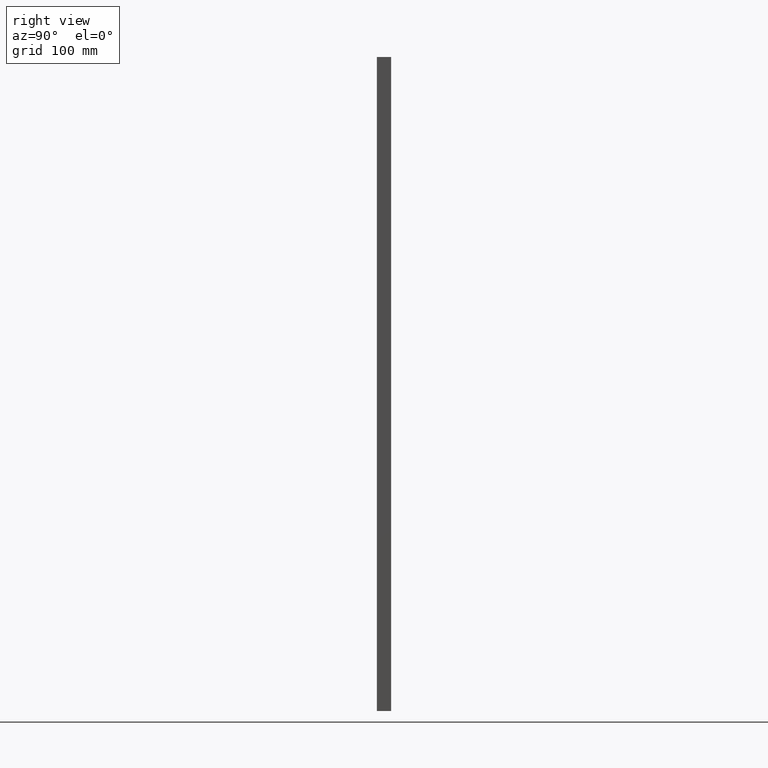
[diagram: clean part render]
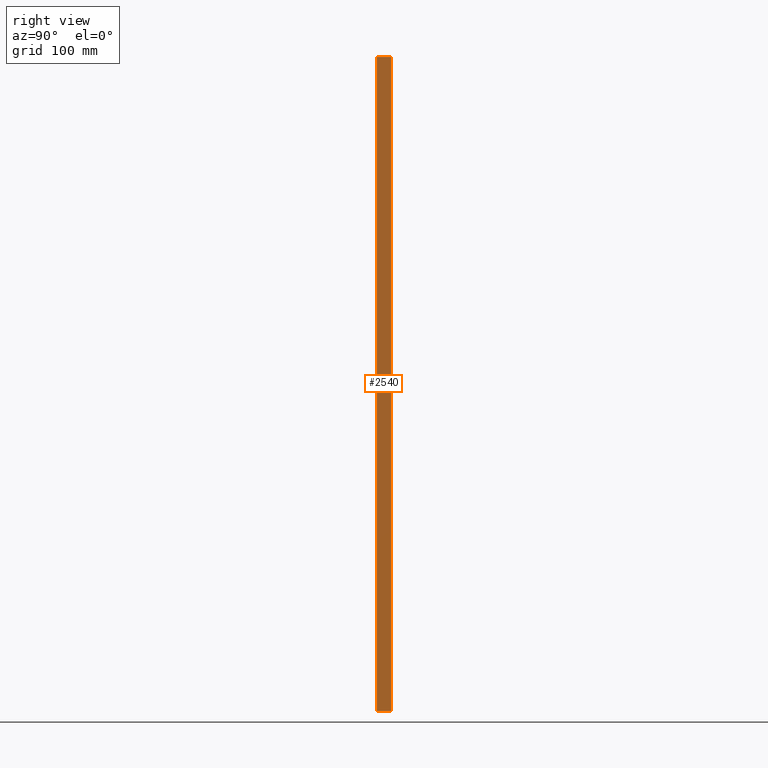
[diagram: same view with one face highlighted and labeled with its STEP entity id]
A machine part, right view. The second image highlights one B-rep face of the part: STEP entity #2540.
In plain terms, the highlighted planar face has unit normal (-1, 0, 0).
Its self-contained STEP definition (entity closure, byte-faithful):
#36 = VERTEX_POINT ( 'NONE', #3815 ) ;
#177 = EDGE_CURVE ( 'NONE', #3461, #8501, #8966, .T. ) ;
#430 = CARTESIAN_POINT ( 'NONE',  ( 150.0000000000000000, 0.000000000000000000, -299.9999999999999432 ) ) ;
#990 = ORIENTED_EDGE ( 'NONE', *, *, #3434, .F. ) ;
#1492 = ORIENTED_EDGE ( 'NONE', *, *, #1508, .F. ) ;
#1508 = EDGE_CURVE ( 'NONE', #5746, #3461, #2339, .T. ) ;
#1714 = ORIENTED_EDGE ( 'NONE', *, *, #177, .F. ) ;
#1986 = CARTESIAN_POINT ( 'NONE',  ( 150.0000000000000000, 13.00000000000000178, -299.9999999999999432 ) ) ;
#2047 = VECTOR ( 'NONE', #3245, 1000.000000000000000 ) ;
#2339 = LINE ( 'NONE', #5286, #9391 ) ;
#2484 = CARTESIAN_POINT ( 'NONE',  ( 150.0000000000000568, 13.00000000000000178, 0.000000000000000000 ) ) ;
#2540 = ADVANCED_FACE ( 'NONE', ( #9225 ), #8511, .F. ) ;
#2633 = LINE ( 'NONE', #3963, #8413 ) ;
#3245 = DIRECTION ( 'NONE',  ( -9.251858538542974046E-17, -0.000000000000000000, -1.000000000000000000 ) ) ;
#3434 = EDGE_CURVE ( 'NONE', #8501, #36, #2633, .T. ) ;
#3461 = VERTEX_POINT ( 'NONE', #6965 ) ;
#3815 = CARTESIAN_POINT ( 'NONE',  ( 150.0000000000000000, 0.000000000000000000, -299.9999999999999432 ) ) ;
#3963 = CARTESIAN_POINT ( 'NONE',  ( 150.0000000000000000, 13.00000000000000178, -299.9999999999999432 ) ) ;
#4024 = EDGE_CURVE ( 'NONE', #5746, #36, #7674, .T. ) ;
#4055 = ORIENTED_EDGE ( 'NONE', *, *, #4024, .T. ) ;
#4889 = DIRECTION ( 'NONE',  ( -1.000000000000000000, 0.000000000000000000, 9.251858538542974046E-17 ) ) ;
#5286 = CARTESIAN_POINT ( 'NONE',  ( 150.0000000000000568, 13.00000000000000178, 300.0000000000000568 ) ) ;
#5517 = DIRECTION ( 'NONE',  ( 0.000000000000000000, 1.000000000000000000, -0.000000000000000000 ) ) ;
#5567 = CARTESIAN_POINT ( 'NONE',  ( 150.0000000000000284, 13.00000000000000178, -299.9999999999999432 ) ) ;
#5622 = DIRECTION ( 'NONE',  ( -0.000000000000000000, -1.000000000000000000, 0.000000000000000000 ) ) ;
#5746 = VERTEX_POINT ( 'NONE', #8990 ) ;
#6373 = DIRECTION ( 'NONE',  ( -0.000000000000000000, 0.000000000000000000, -1.000000000000000000 ) ) ;
#6965 = CARTESIAN_POINT ( 'NONE',  ( 150.0000000000000568, 13.00000000000000178, 300.0000000000000568 ) ) ;
#7323 = DIRECTION ( 'NONE',  ( 9.251858538542974046E-17, 0.000000000000000000, 1.000000000000000000 ) ) ;
#7674 = LINE ( 'NONE', #430, #2047 ) ;
#8401 = AXIS2_PLACEMENT_3D ( 'NONE', #1986, #4889, #7323 ) ;
#8413 = VECTOR ( 'NONE', #5622, 1000.000000000000000 ) ;
#8465 = EDGE_LOOP ( 'NONE', ( #990, #1714, #1492, #4055 ) ) ;
#8501 = VERTEX_POINT ( 'NONE', #5567 ) ;
#8511 = PLANE ( 'NONE',  #8401 ) ;
#8966 = LINE ( 'NONE', #2484, #9098 ) ;
#8990 = CARTESIAN_POINT ( 'NONE',  ( 150.0000000000000284, 0.000000000000000000, 300.0000000000000568 ) ) ;
#9098 = VECTOR ( 'NONE', #6373, 1000.000000000000000 ) ;
#9225 = FACE_OUTER_BOUND ( 'NONE', #8465, .T. ) ;
#9391 = VECTOR ( 'NONE', #5517, 1000.000000000000000 ) ;